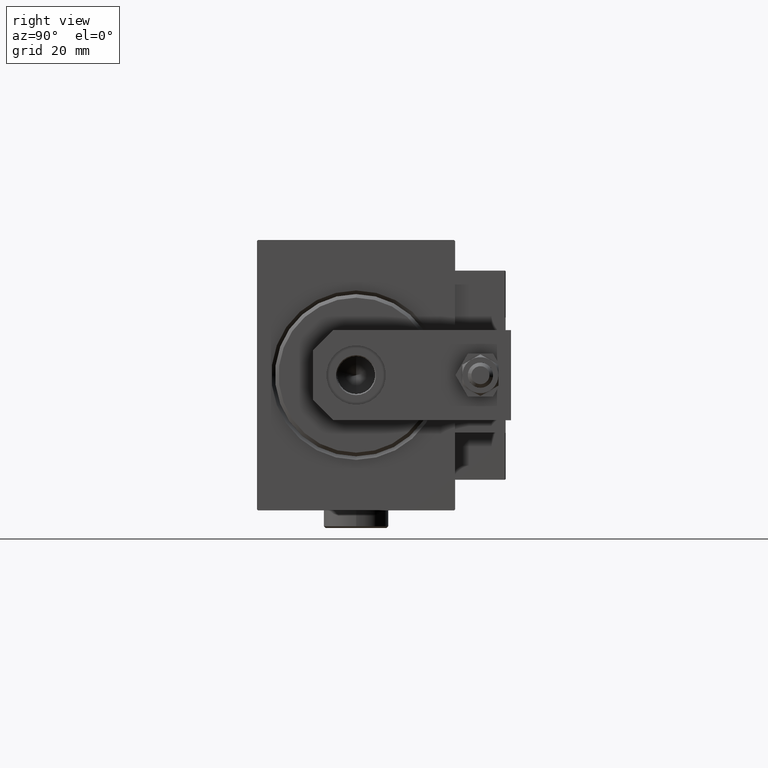
[diagram: clean part render]
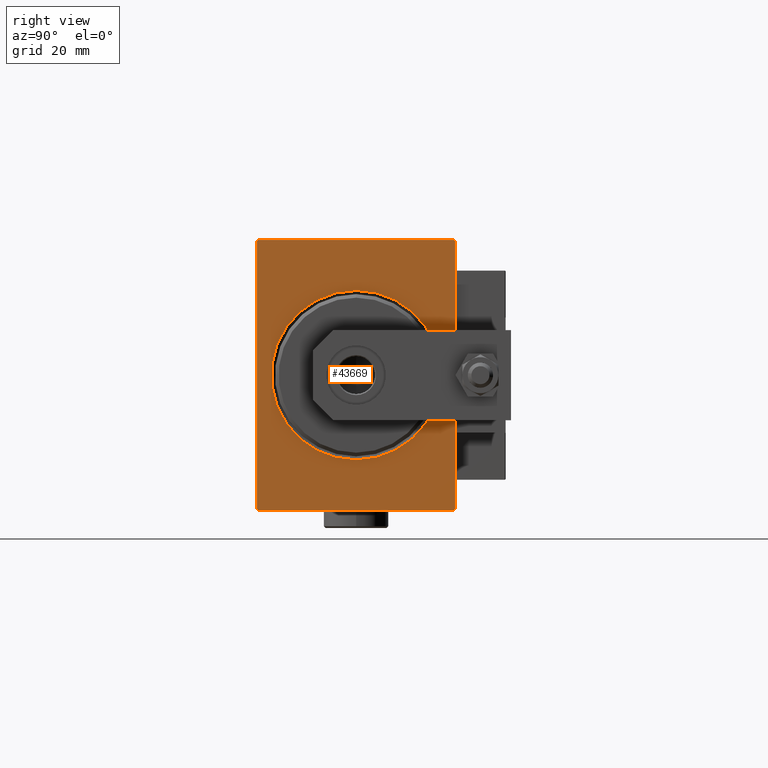
[diagram: same view with one face highlighted and labeled with its STEP entity id]
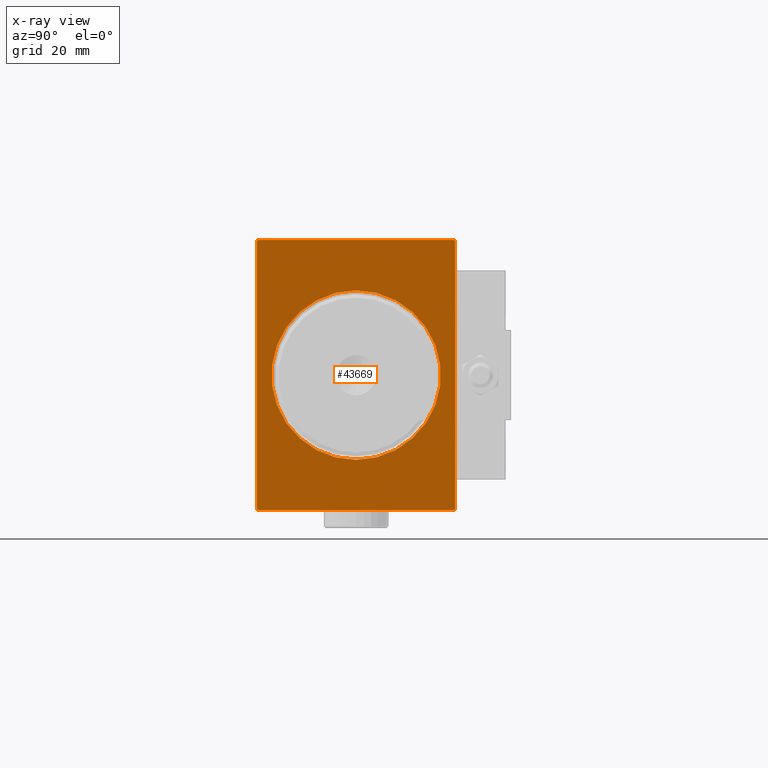
[diagram: x-ray of the same camera — body ghosted, the highlighted face saturated]
A machine part, right view. The second image highlights one B-rep face of the part: STEP entity #43669.
The next image is the same camera in x-ray: the body ghosted, the highlighted face saturated — about 0% of this face is hidden behind the body in this view.
In plain terms, the highlighted planar face has unit normal (-1, 0, 0).
Its self-contained STEP definition (entity closure, byte-faithful):
#483 = DIRECTION ( 'NONE',  ( 1.000000000000000000, 0.000000000000000000, 0.000000000000000000 ) ) ;
#988 = CARTESIAN_POINT ( 'NONE',  ( 0.000000000000000000, -27.50000000000000000, 37.49999999999999289 ) ) ;
#1620 = DIRECTION ( 'NONE',  ( 1.000000000000000000, 0.000000000000000000, 0.000000000000000000 ) ) ;
#2212 = FACE_OUTER_BOUND ( 'NONE', #45142, .T. ) ;
#2869 = VERTEX_POINT ( 'NONE', #5955 ) ;
#3274 = CARTESIAN_POINT ( 'NONE',  ( 0.000000000000000000, 27.50000000000000355, -37.50000000000000711 ) ) ;
#3854 = DIRECTION ( 'NONE',  ( 0.000000000000000000, 0.000000000000000000, -1.000000000000000000 ) ) ;
#3860 = ORIENTED_EDGE ( 'NONE', *, *, #42453, .T. ) ;
#4005 = VERTEX_POINT ( 'NONE', #27843 ) ;
#5473 = VERTEX_POINT ( 'NONE', #38376 ) ;
#5955 = CARTESIAN_POINT ( 'NONE',  ( 0.000000000000000000, 27.19999999999999929, -37.50000000000000711 ) ) ;
#5957 = ORIENTED_EDGE ( 'NONE', *, *, #21525, .F. ) ;
#6098 = FACE_BOUND ( 'NONE', #41672, .T. ) ;
#6118 = AXIS2_PLACEMENT_3D ( 'NONE', #48831, #24778, #36702 ) ;
#6167 = DIRECTION ( 'NONE',  ( 0.000000000000000000, -0.7071067811865434649, -0.7071067811865516806 ) ) ;
#6515 = DIRECTION ( 'NONE',  ( -0.000000000000000000, 0.7071067811865474617, -0.7071067811865474617 ) ) ;
#6826 = ORIENTED_EDGE ( 'NONE', *, *, #20410, .T. ) ;
#7179 = CARTESIAN_POINT ( 'NONE',  ( 0.000000000000000000, -27.50000000000000000, -37.50000000000000711 ) ) ;
#8193 = DIRECTION ( 'NONE',  ( 0.000000000000000000, 1.000000000000000000, 0.000000000000000000 ) ) ;
#8969 = PLANE ( 'NONE',  #6118 ) ;
#10556 = LINE ( 'NONE', #49408, #17851 ) ;
#10576 = EDGE_CURVE ( 'NONE', #47555, #4005, #26217, .T. ) ;
#10994 = CIRCLE ( 'NONE', #17631, 23.50000000000000355 ) ;
#11246 = VECTOR ( 'NONE', #19084, 1000.000000000000000 ) ;
#11557 = CARTESIAN_POINT ( 'NONE',  ( 0.000000000000000000, 27.20000000000000284, 37.50000000000000711 ) ) ;
#12046 = CARTESIAN_POINT ( 'NONE',  ( 0.000000000000000000, 27.49999999999999645, 37.50000000000000711 ) ) ;
#12866 = VERTEX_POINT ( 'NONE', #45644 ) ;
#13381 = CARTESIAN_POINT ( 'NONE',  ( 0.000000000000000000, 2.877919977996280715E-15, -23.50000000000000355 ) ) ;
#13404 = VECTOR ( 'NONE', #35359, 1000.000000000000000 ) ;
#13539 = DIRECTION ( 'NONE',  ( 0.000000000000000000, 0.000000000000000000, -1.000000000000000000 ) ) ;
#14781 = VECTOR ( 'NONE', #49962, 999.9999999999998863 ) ;
#16548 = DIRECTION ( 'NONE',  ( 0.000000000000000000, 0.000000000000000000, -1.000000000000000000 ) ) ;
#17413 = EDGE_CURVE ( 'NONE', #5473, #49653, #49181, .T. ) ;
#17631 = AXIS2_PLACEMENT_3D ( 'NONE', #20180, #483, #3854 ) ;
#17721 = EDGE_CURVE ( 'NONE', #32232, #2869, #47306, .T. ) ;
#17851 = VECTOR ( 'NONE', #6167, 1000.000000000000000 ) ;
#18064 = EDGE_CURVE ( 'NONE', #32232, #49235, #42601, .T. ) ;
#18356 = CARTESIAN_POINT ( 'NONE',  ( 0.000000000000000000, -27.50000000000000000, -37.19999999999999574 ) ) ;
#18711 = CARTESIAN_POINT ( 'NONE',  ( 0.000000000000000000, -27.20000000000000284, 37.49999999999999289 ) ) ;
#19084 = DIRECTION ( 'NONE',  ( 0.000000000000000000, -9.251858538542970348E-17, 1.000000000000000000 ) ) ;
#20180 = CARTESIAN_POINT ( 'NONE',  ( 0.000000000000000000, 0.000000000000000000, 0.000000000000000000 ) ) ;
#20410 = EDGE_CURVE ( 'NONE', #12866, #2869, #10556, .T. ) ;
#20665 = ORIENTED_EDGE ( 'NONE', *, *, #40232, .F. ) ;
#21525 = EDGE_CURVE ( 'NONE', #12866, #4005, #38773, .T. ) ;
#21600 = ORIENTED_EDGE ( 'NONE', *, *, #17413, .T. ) ;
#21745 = CARTESIAN_POINT ( 'NONE',  ( 0.000000000000000000, -27.19999999999999218, -37.50000000000000711 ) ) ;
#21817 = CARTESIAN_POINT ( 'NONE',  ( 0.000000000000000000, 27.20000000000000284, 37.50000000000000711 ) ) ;
#21913 = VECTOR ( 'NONE', #8193, 1000.000000000000000 ) ;
#23789 = LINE ( 'NONE', #988, #24060 ) ;
#24060 = VECTOR ( 'NONE', #16548, 1000.000000000000000 ) ;
#24065 = ORIENTED_EDGE ( 'NONE', *, *, #18064, .T. ) ;
#24778 = DIRECTION ( 'NONE',  ( 1.000000000000000000, 0.000000000000000000, 0.000000000000000000 ) ) ;
#25379 = VERTEX_POINT ( 'NONE', #18711 ) ;
#26217 = LINE ( 'NONE', #21817, #26719 ) ;
#26643 = CARTESIAN_POINT ( 'NONE',  ( 0.000000000000000000, -27.50000000000000000, 37.19999999999999574 ) ) ;
#26719 = VECTOR ( 'NONE', #6515, 1000.000000000000114 ) ;
#27843 = CARTESIAN_POINT ( 'NONE',  ( 0.000000000000000000, 27.49999999999999645, 37.20000000000000995 ) ) ;
#31290 = LINE ( 'NONE', #46839, #14781 ) ;
#31723 = LINE ( 'NONE', #12046, #13404 ) ;
#31884 = ORIENTED_EDGE ( 'NONE', *, *, #36323, .F. ) ;
#32232 = VERTEX_POINT ( 'NONE', #21745 ) ;
#33202 = EDGE_CURVE ( 'NONE', #49304, #25379, #31290, .T. ) ;
#33256 = ORIENTED_EDGE ( 'NONE', *, *, #10576, .T. ) ;
#33493 = CARTESIAN_POINT ( 'NONE',  ( 0.000000000000000000, 0.000000000000000000, 0.000000000000000000 ) ) ;
#35359 = DIRECTION ( 'NONE',  ( 0.000000000000000000, -1.000000000000000000, -2.523234146875355998E-16 ) ) ;
#35663 = ORIENTED_EDGE ( 'NONE', *, *, #33202, .T. ) ;
#36323 = EDGE_CURVE ( 'NONE', #49304, #49235, #23789, .T. ) ;
#36702 = DIRECTION ( 'NONE',  ( 0.000000000000000000, 0.000000000000000000, -1.000000000000000000 ) ) ;
#36788 = VECTOR ( 'NONE', #50872, 1000.000000000000114 ) ;
#38376 = CARTESIAN_POINT ( 'NONE',  ( 0.000000000000000000, 0.000000000000000000, 23.50000000000000355 ) ) ;
#38773 = LINE ( 'NONE', #3274, #11246 ) ;
#40232 = EDGE_CURVE ( 'NONE', #47555, #25379, #31723, .T. ) ;
#41672 = EDGE_LOOP ( 'NONE', ( #21600, #3860 ) ) ;
#42453 = EDGE_CURVE ( 'NONE', #49653, #5473, #10994, .T. ) ;
#42601 = LINE ( 'NONE', #50356, #36788 ) ;
#43669 = ADVANCED_FACE ( 'NONE', ( #6098, #2212 ), #8969, .F. ) ;
#45142 = EDGE_LOOP ( 'NONE', ( #20665, #33256, #5957, #6826, #51083, #24065, #31884, #35663 ) ) ;
#45644 = CARTESIAN_POINT ( 'NONE',  ( 0.000000000000000000, 27.50000000000000355, -37.19999999999999574 ) ) ;
#46839 = CARTESIAN_POINT ( 'NONE',  ( 0.000000000000000000, -27.50000000000000000, 37.19999999999999574 ) ) ;
#47306 = LINE ( 'NONE', #7179, #21913 ) ;
#47555 = VERTEX_POINT ( 'NONE', #11557 ) ;
#48338 = AXIS2_PLACEMENT_3D ( 'NONE', #33493, #1620, #13539 ) ;
#48831 = CARTESIAN_POINT ( 'NONE',  ( 0.000000000000000000, 0.000000000000000000, 0.000000000000000000 ) ) ;
#49181 = CIRCLE ( 'NONE', #48338, 23.50000000000000355 ) ;
#49235 = VERTEX_POINT ( 'NONE', #18356 ) ;
#49304 = VERTEX_POINT ( 'NONE', #26643 ) ;
#49408 = CARTESIAN_POINT ( 'NONE',  ( 0.000000000000000000, 27.50000000000000355, -37.19999999999999574 ) ) ;
#49653 = VERTEX_POINT ( 'NONE', #13381 ) ;
#49962 = DIRECTION ( 'NONE',  ( -0.000000000000000000, 0.7071067811865515695, 0.7071067811865435759 ) ) ;
#50356 = CARTESIAN_POINT ( 'NONE',  ( 0.000000000000000000, -27.19999999999999218, -37.50000000000000711 ) ) ;
#50872 = DIRECTION ( 'NONE',  ( -0.000000000000000000, -0.7071067811865474617, 0.7071067811865474617 ) ) ;
#51083 = ORIENTED_EDGE ( 'NONE', *, *, #17721, .F. ) ;